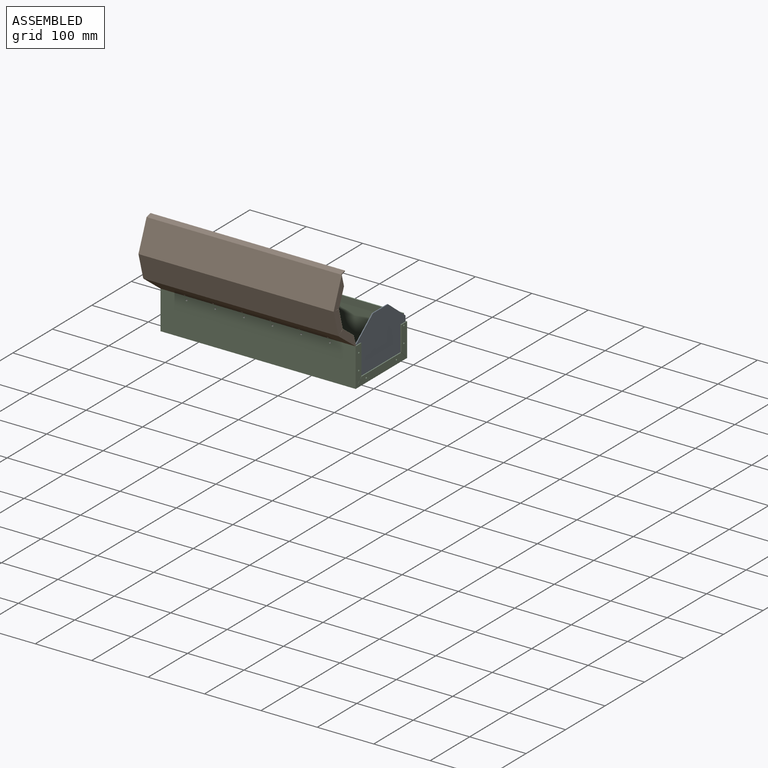
[diagram: assembled view]
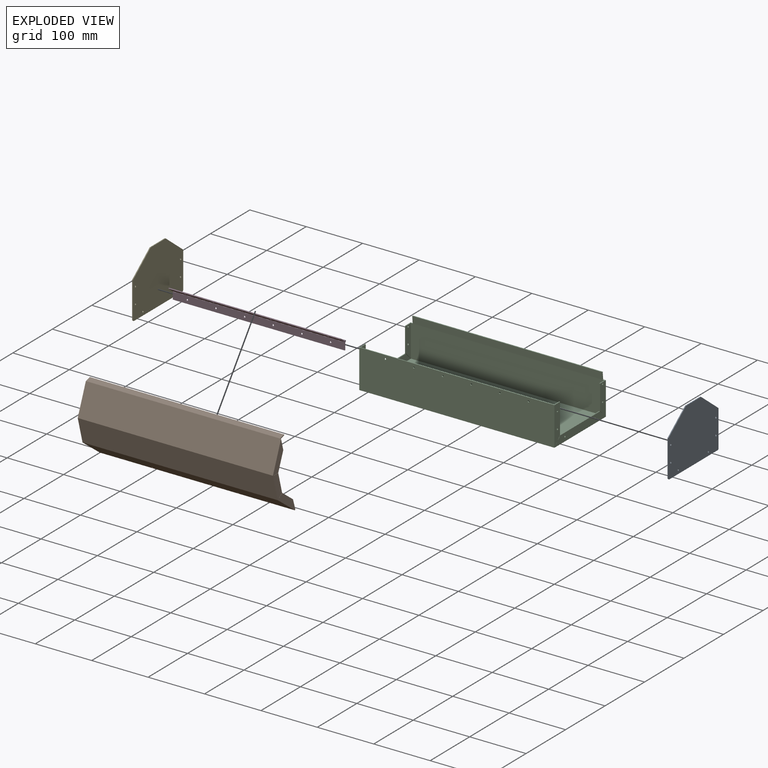
[diagram: exploded view]
GUIDED TOUR — MATED ASSEMBLY WITH SUBASSEMBLIES (Onshape document 583db250d88ef31051926281, AutoMate assembly 583db250d88ef31051926281_d5bd9da4a9e3751a0005c01e_6bdeaee52daf93c779b3a2b1_default)

This assembly has 7 component occurrences arranged in 5 top-level units: 4 individual components plus 1 subassembly (S0). The tour has two levels: first the top level, where each subassembly is treated as one rigid unit; then each subassembly is toured internally in its own section (nesting deeper than one subassembly level is flattened into its subassembly's section).

Components are labeled P0..P6 across the whole record; subassembly units are labeled S0..S0. A mate is a constraint between two units; its type names the relative motion it leaves free:
  CYLINDRICAL — leaves both rotation about and translation along the listed axis free,
  PLANAR — leaves sliding in the plane through the listed point (normal = the listed direction) and rotation about that normal free.
Axis/direction vectors are unit vectors and 'through' points are millimeter coordinates, both in the assembly's world frame.

TOP-LEVEL MATES (between units; each subassembly's internal mates are listed in its own section)
  1. CYLINDRICAL "Cylindrical 6": S0 <-> P2, axis (0.000, -1.000, 0.000) through (207.93, 35.70, 81.81) mm
  2. CYLINDRICAL "Cylindrical 3": P0 <-> P2, axis (-1.000, 0.000, 0.000) through (250.79, 137.30, 27.87) mm
  3. CYLINDRICAL "Cylindrical 2": P5 <-> P2, axis (-1.000, 0.000, 0.000) through (-90.52, 156.35, 46.92) mm
  4. PLANAR "Planar 3": S0 <-> P2, direction (0.000, -1.000, 0.000) through (-20.67, 35.70, 88.16) mm
  5. PLANAR "Planar 1": P5 <-> P2, direction (-1.000, 0.000, 0.000) through (-90.52, 99.20, 67.04) mm
  6. CYLINDRICAL "Cylindrical 7": P1 <-> S0, axis (0.000, -0.602, -0.799) through (-46.07, 29.04, 91.99) mm
  7. CYLINDRICAL "Cylindrical 4": P0 <-> P2, axis (-1.000, 0.000, 0.000) through (250.79, 61.10, 27.87) mm
  8. CYLINDRICAL "Cylindrical 1": P5 <-> P2, axis (-1.000, 0.000, 0.000) through (-90.52, 61.10, 27.87) mm
  9. PLANAR "Planar 2": P0 <-> P2, direction (1.000, 0.000, 0.000) through (252.38, 99.20, 67.04) mm
  10. CYLINDRICAL "Cylindrical 8": P1 <-> S0, axis (0.000, 0.602, 0.799) through (207.93, 30.00, 93.26) mm
  11. PLANAR "Planar 4": P1 <-> S0, direction (0.000, 0.602, 0.799) through (80.93, 13.47, 105.71) mm
  12. CYLINDRICAL "Cylindrical 5": S0 <-> P2, axis (0.000, -1.000, 0.000) through (-46.07, 35.70, 81.81) mm

TOP-LEVEL ASSEMBLY ORDER
  1. S0 — the base component [order verified]
  2. P2 [order verified]
  3. P1 [order verified]
  4. P0 [order verified]
  5. P5 [order verified]
Order-tag legend:
  [order verified] — this step's position reverses a verified removal order: the component was checked to insert without passing through the ones already placed.

Of the 7 component occurrences, 1 carries the full construction recipe — the FeatureScript program that regenerates the part's solid from scratch; the rest are supplied as boundary geometry only. Each toured unit is shown spotlighted twice — assembled, then exploded with a leader line back to its socket (green = recipe-attached component, orange = geometry-only, blue = subassembly unit; the rest desaturated gray).
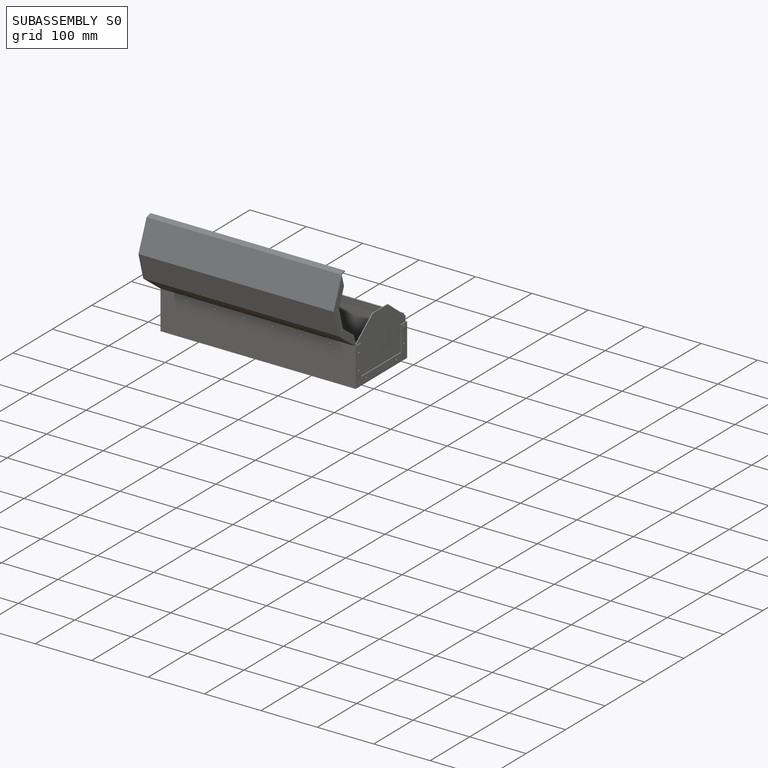
[diagram: subassembly S0 — assembled]
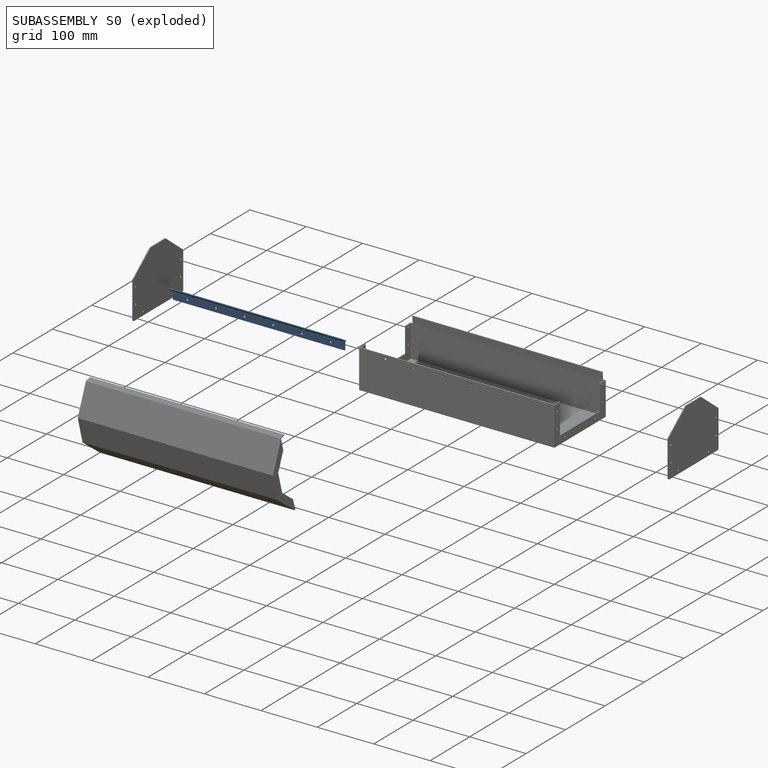
[diagram: subassembly S0 — exploded]
SUBASSEMBLY S0 — 3 components (P3, P4, P6), of which 0 recipe-attached; toured below.
Held by: CYLINDRICAL mate "Cylindrical 6" to P2; PLANAR mate "Planar 3" to P2; CYLINDRICAL mate "Cylindrical 7" to P1; CYLINDRICAL mate "Cylindrical 8" to P1; PLANAR mate "Planar 4" to P1; CYLINDRICAL mate "Cylindrical 5" to P2.
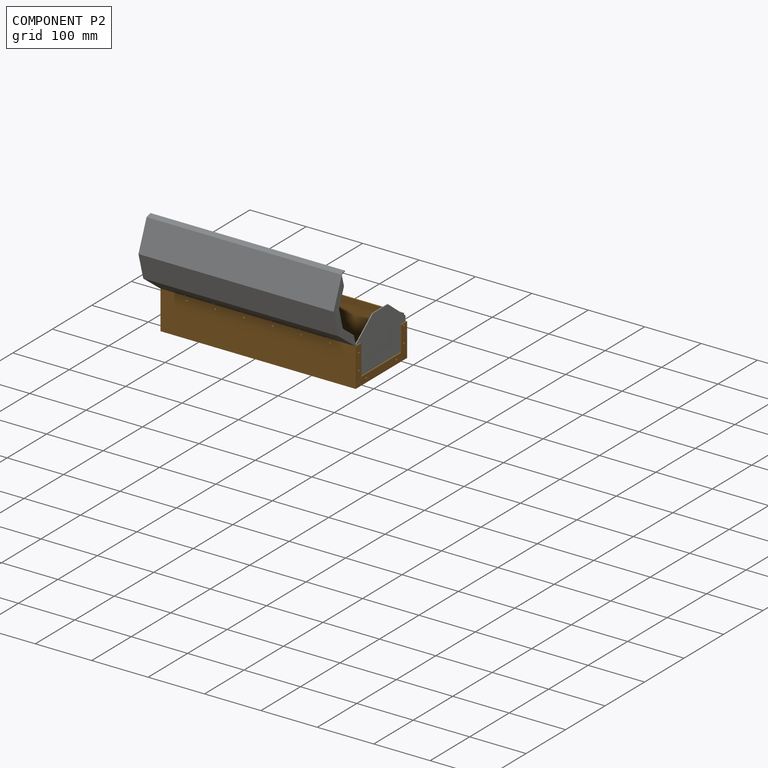
[diagram: component P2 — assembled]
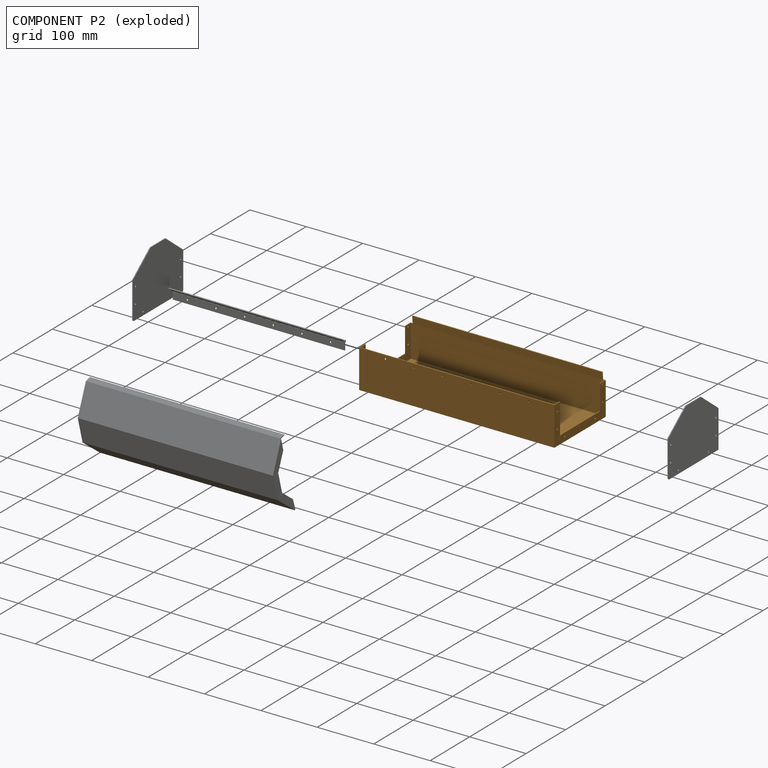
[diagram: component P2 — exploded]
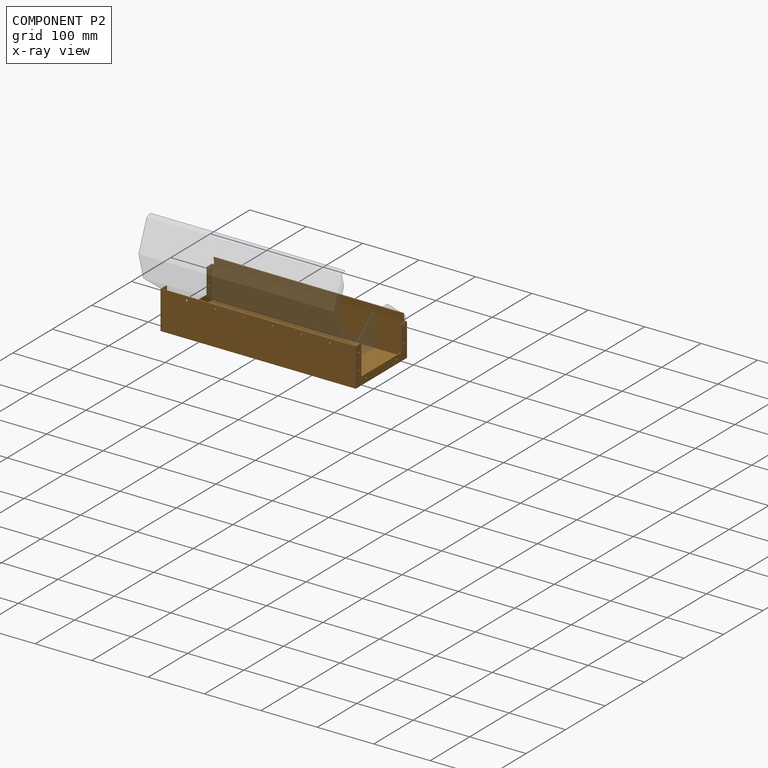
[diagram: component P2 — x-ray view]
COMPONENT P2 — geometry summary (no construction recipe available for this part):
  bounding box: 346.1 x 130.2 x 71.4 mm
  B-rep topology: 1 solid, 56 faces, 328 edges
  volume: 155118 mm^3 (5% of its bounding box)
  symmetry: mirror-symmetric across its x mid-plane
Held by: CYLINDRICAL mate "Cylindrical 6" to P3; CYLINDRICAL mate "Cylindrical 3" to P0; CYLINDRICAL mate "Cylindrical 2" to P5; PLANAR mate "Planar 3" to P3; PLANAR mate "Planar 1" to P5; CYLINDRICAL mate "Cylindrical 4" to P0; CYLINDRICAL mate "Cylindrical 1" to P5; PLANAR mate "Planar 2" to P0; CYLINDRICAL mate "Cylindrical 5" to P3.
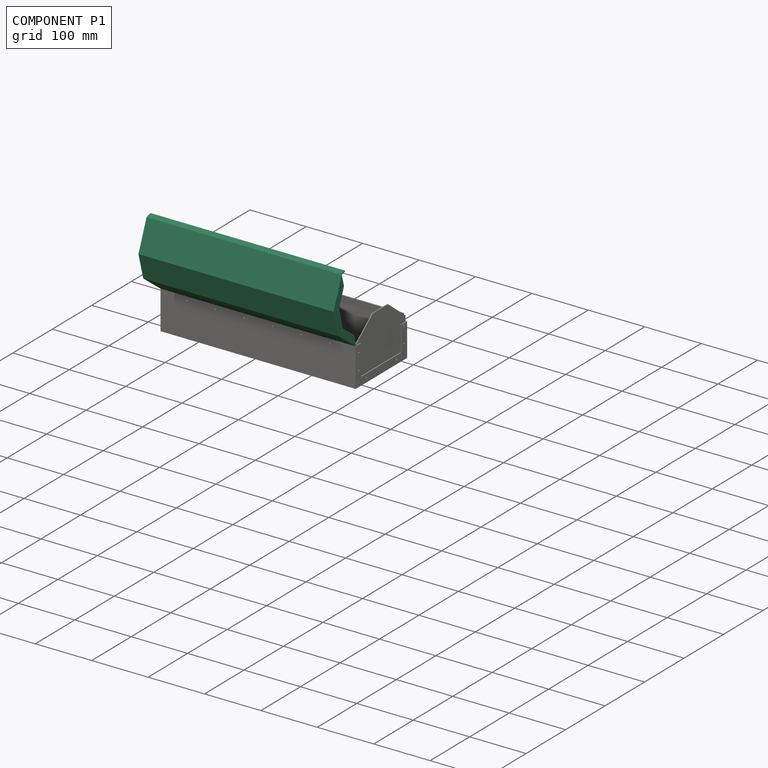
[diagram: component P1 — assembled]
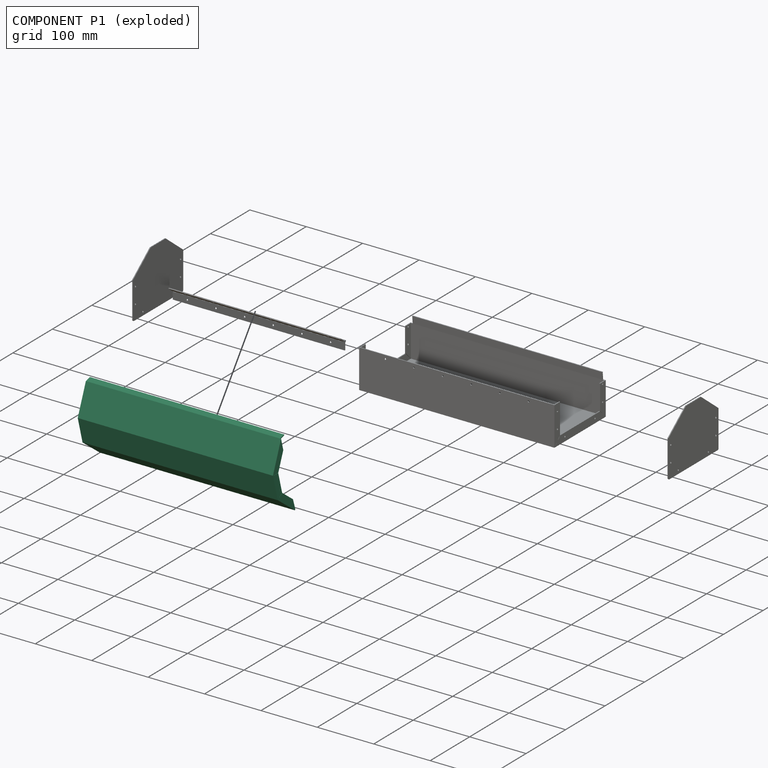
[diagram: component P1 — exploded]
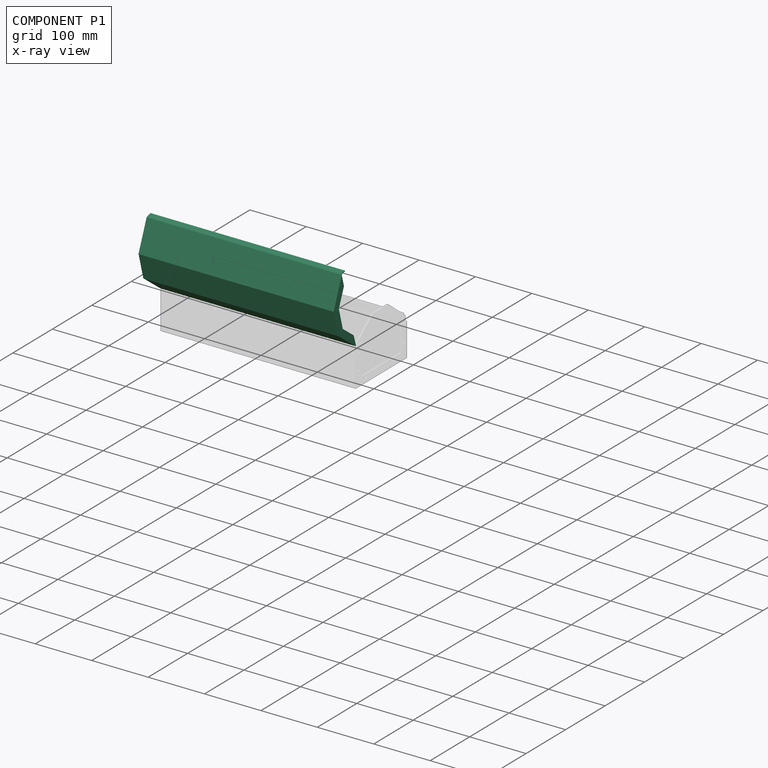
[diagram: component P1 — x-ray view]
COMPONENT P1 — recipe-attached (CADFS 00343173, mesh-verified: the recipe's output STEP matches this component's geometry to below the mesh-comparison resolution (tessellation chordal tolerance ~0.56 mm)).
Held by: CYLINDRICAL mate "Cylindrical 7" to P3; CYLINDRICAL mate "Cylindrical 8" to P3; PLANAR mate "Planar 4" to P3.
Construction recipe (FeatureScript — the CAD program that rebuilds this solid; sketch coordinates are in the units given by the * unit suffixes, e.g. mm):

FeatureScript 1549;
import(path : "onshape/std/geometry.fs", version : "1549.0");
import(path : "onshape/std/common.fs", version : "1549.0");
const mm = millimeter;
const VERTEX = EntityType.VERTEX;
const EDGE = EntityType.EDGE;
const FACE = EntityType.FACE;
const BODY = EntityType.BODY;
function v(x, y){return vector(x, y);}
function OD(order){return orderDisambiguation(order);}
function OSD(set){return originalSetDisambiguation(set);}
function TD(topology){return topologyDisambiguation(topology);}
function TDD(query){return trueDependencyDisambiguation(query);}
function sQuery(a, b, c) {return sketchEntityQuery(a, b, c);}

annotation { "Feature Type Name" : "Feature", "Feature Type Description" : "" }
export const myFeature = defineFeature(function(context is Context, id is Id, definition is map)
    precondition{}
    {
        {
            var Q0;
            Q0=qCreatedBy(makeId("Right.planeOp"),FACE);
            var sketch = newSketch(context, id + "F0", { "sketchPlane" : qUnion([Q0])});
            skLineSegment(sketch, "E0", {"start": v(0, 0) * mm, "end": v(130.18, 0) * mm, "construction": true});
            skLineSegment(sketch, "E1", {"start": v(0, 0) * mm, "end": v(42.86, 32.8) * mm});
            skLineSegment(sketch, "E2", {"start": v(42.86, 32.8) * mm, "end": v(87.31, 32.8) * mm});
            skLineSegment(sketch, "E3", {"start": v(87.31, 32.8) * mm, "end": v(130.18, 0) * mm});
            skLineSegment(sketch, "E4", {"start": v(130.18, 0) * mm, "end": v(130.18, -9.53) * mm});
            skLineSegment(sketch, "E5", {"start": v(130.18, -9.53) * mm, "end": v(131.76, -9.53) * mm});
            skLineSegment(sketch, "E6.0", {"start": v(0, 1.59) * mm, "end": v(130.18, 1.59) * mm, "construction": true});
            skLineSegment(sketch, "E7", {"start": v(131.76, -9.53) * mm, "end": v(131.76, 0.78) * mm});
            skLineSegment(sketch, "E8.0", {"start": v(42.32, 34.4) * mm, "end": v(87.85, 34.4) * mm});
            skLineSegment(sketch, "E9.0", {"start": v(-0.96, 1.26) * mm, "end": v(42.32, 34.4) * mm});
            skLineSegment(sketch, "E10.0", {"start": v(87.85, 34.4) * mm, "end": v(131.76, 0.78) * mm});
            skLineSegment(sketch, "E11", {"start": v(-0.96, 1.26) * mm, "end": v(0, 0) * mm});
            skSolve(sketch);
        }
        {
            var Q0;
            Q0=makeQuery(id+"F0.imprint","IMPRINT",FACE,{"disambiguationData":[TD([[makeQuery(id+"F0.imprint","IMPRINT",EDGE,{"derivedFrom":sQuery(id+"F0.wireOp",EDGE,"E1")}),1.0]])]});
            extrude(context, id + "F1", {"entities" : qUnion([Q0]), "depth" : 342.9 * mm});
        }
        {
            var Q0;
            Q0=makeQuery(id+"F1.opExtrude","CAP_FACE",FACE,{"disambiguationData":[OSD([sQuery(id+"F0.wireOp",EDGE,"E1"),sQuery(id+"F0.wireOp",EDGE,"E2"),sQuery(id+"F0.wireOp",EDGE,"E3"),sQuery(id+"F0.wireOp",EDGE,"E4"),sQuery(id+"F0.wireOp",EDGE,"E5"),sQuery(id+"F0.wireOp",EDGE,"E7"),sQuery(id+"F0.wireOp",EDGE,"E8.0"),sQuery(id+"F0.wireOp",EDGE,"E9.0"),sQuery(id+"F0.wireOp",EDGE,"E10.0"),sQuery(id+"F0.wireOp",EDGE,"E11")])],"isStart":false});
            var sketch = newSketch(context, id + "F2", { "sketchPlane" : qUnion([Q0])});
            skLineSegment(sketch, "E12.0", {"start": v(19.36, 0.82) * mm, "end": v(46.42, 21.54) * mm});
            skLineSegment(sketch, "E13.0", {"start": v(46.88, 21.7) * mm, "end": v(83.3, 21.7) * mm});
            skLineSegment(sketch, "E14.0", {"start": v(83.75, 21.54) * mm, "end": v(110.81, 0.82) * mm});
            skLineSegment(sketch, "E15", {"start": v(19.36, 0.82) * mm, "end": v(0, 0) * mm});
            skLineSegment(sketch, "E16", {"start": v(46.88, 21.7) * mm, "end": v(42.86, 32.8) * mm});
            skLineSegment(sketch, "E17", {"start": v(42.86, 32.8) * mm, "end": v(46.42, 21.54) * mm});
            skLineSegment(sketch, "E18", {"start": v(83.3, 21.7) * mm, "end": v(87.31, 32.8) * mm});
            skLineSegment(sketch, "E19", {"start": v(87.31, 32.8) * mm, "end": v(83.75, 21.54) * mm});
            skLineSegment(sketch, "E20", {"start": v(130.18, 0) * mm, "end": v(123.42, -8.82) * mm, "construction": true});
            skLineSegment(sketch, "E21", {"start": v(110.81, 0.82) * mm, "end": v(130.18, 0) * mm});
            skSolve(sketch);
        }
        {
            var Q0;
            Q0=makeQuery(id+"F2.imprint","IMPRINT",FACE,{"disambiguationData":[TD([[makeQuery(id+"F2.imprint","IMPRINT",EDGE,{"derivedFrom":sQuery(id+"F2.wireOp",EDGE,"E12.0")}),1.0]])]});
            var Q1;
            Q1=makeQuery(id+"F2.imprint","IMPRINT",FACE,{"disambiguationData":[TD([[makeQuery(id+"F2.imprint","IMPRINT",EDGE,{"derivedFrom":sQuery(id+"F2.wireOp",EDGE,"E13.0")}),1.0]])]});
            var Q2;
            Q2=makeQuery(id+"F2.imprint","IMPRINT",FACE,{"disambiguationData":[TD([[makeQuery(id+"F2.imprint","IMPRINT",EDGE,{"derivedFrom":sQuery(id+"F2.wireOp",EDGE,"E14.0")}),1.0]])]});
            var Q3;
            Q3=makeQuery(id+"F2.imprint","IMPRINT",FACE,{"disambiguationData":[TD([[makeQuery(id+"F2.imprint","IMPRINT",EDGE,{"derivedFrom":makeQuery(id+"F1.opExtrude","CAP_EDGE",EDGE,{"disambiguationData":[OSD([sQuery(id+"F0.wireOp",EDGE,"E1")])],"isStart":false})}),1.0]])]});
            extrude(context, id + "F3", {"entities" : qUnion([Q0, Q1, Q2, Q3]), "depth" : 1.59 * mm});
        }
        {
            var Q0;
            Q0=makeQuery(id+"F3.opExtrude","SWEPT_FACE",FACE,{"disambiguationData":[OSD([sQuery(id+"F0.wireOp",EDGE,"E7")])]});
            var sketch = newSketch(context, id + "F4", { "sketchPlane" : qUnion([Q0])});
            skLineSegment(sketch, "E22.bottom", {"start": v(-344.49, 0.78) * mm, "end": v(-342.9, 0.78) * mm});
            skLineSegment(sketch, "E22.top", {"start": v(-344.49, -9.53) * mm, "end": v(-342.9, -9.53) * mm});
            skLineSegment(sketch, "E22.left", {"start": v(-344.49, 0.78) * mm, "end": v(-344.49, -9.53) * mm});
            skLineSegment(sketch, "E22.right", {"start": v(-342.9, 0.78) * mm, "end": v(-342.9, -9.53) * mm});
            skSolve(sketch);
        }
        {
            var Q0;
            Q0=makeQuery(id+"F4.imprint","IMPRINT",FACE,{"disambiguationData":[TD([[makeQuery(id+"F4.imprint","IMPRINT",EDGE,{"derivedFrom":sQuery(id+"F4.wireOp",EDGE,"E22.bottom")}),-1.0]])]});
            extrude(context, id + "F5", {"entities" : qUnion([Q0]), "operationType" : NewBodyOperationType.REMOVE, "oppositeDirection" : true, "depth" : 25.4 * mm});
        }
        {
            var Q0;
            Q0=makeQuery(id+"F1.opExtrude","CAP_FACE",FACE,{"disambiguationData":[OSD([sQuery(id+"F0.wireOp",EDGE,"E1"),sQuery(id+"F0.wireOp",EDGE,"E2"),sQuery(id+"F0.wireOp",EDGE,"E3"),sQuery(id+"F0.wireOp",EDGE,"E4"),sQuery(id+"F0.wireOp",EDGE,"E5"),sQuery(id+"F0.wireOp",EDGE,"E7"),sQuery(id+"F0.wireOp",EDGE,"E8.0"),sQuery(id+"F0.wireOp",EDGE,"E9.0"),sQuery(id+"F0.wireOp",EDGE,"E10.0"),sQuery(id+"F0.wireOp",EDGE,"E11")])],"isStart":true});
            var sketch = newSketch(context, id + "F6", { "sketchPlane" : qUnion([Q0])});
            skLineSegment(sketch, "E23.0", {"start": v(-110.81, 0.82) * mm, "end": v(-83.75, 21.54) * mm});
            skLineSegment(sketch, "E24.0", {"start": v(-83.3, 21.7) * mm, "end": v(-46.88, 21.7) * mm});
            skLineSegment(sketch, "E25.0", {"start": v(-46.42, 21.54) * mm, "end": v(-19.36, 0.82) * mm});
            skLineSegment(sketch, "E26", {"start": v(-110.81, 0.82) * mm, "end": v(-130.18, 0) * mm});
            skLineSegment(sketch, "E27", {"start": v(-83.3, 21.7) * mm, "end": v(-87.31, 32.8) * mm});
            skLineSegment(sketch, "E28", {"start": v(-87.31, 32.8) * mm, "end": v(-83.75, 21.54) * mm});
            skLineSegment(sketch, "E29", {"start": v(-46.88, 21.7) * mm, "end": v(-42.86, 32.8) * mm});
            skLineSegment(sketch, "E30", {"start": v(-42.86, 32.8) * mm, "end": v(-46.42, 21.54) * mm});
            skLineSegment(sketch, "E31", {"start": v(0, 0) * mm, "end": v(-6.75, -8.82) * mm, "construction": true});
            skLineSegment(sketch, "E32", {"start": v(-19.36, 0.82) * mm, "end": v(0, 0) * mm});
            skSolve(sketch);
        }
        {
            var Q0;
            Q0=makeQuery(id+"F6.imprint","IMPRINT",FACE,{"disambiguationData":[TD([[makeQuery(id+"F6.imprint","IMPRINT",EDGE,{"derivedFrom":sQuery(id+"F6.wireOp",EDGE,"E23.0")}),1.0]])]});
            var Q1;
            Q1=makeQuery(id+"F6.imprint","IMPRINT",FACE,{"disambiguationData":[TD([[makeQuery(id+"F6.imprint","IMPRINT",EDGE,{"derivedFrom":sQuery(id+"F6.wireOp",EDGE,"E24.0")}),1.0]])]});
            var Q2;
            Q2=makeQuery(id+"F6.imprint","IMPRINT",FACE,{"disambiguationData":[TD([[makeQuery(id+"F6.imprint","IMPRINT",EDGE,{"derivedFrom":sQuery(id+"F6.wireOp",EDGE,"E25.0")}),1.0]])]});
            var Q3;
            Q3=makeQuery(id+"F6.imprint","IMPRINT",FACE,{"disambiguationData":[TD([[makeQuery(id+"F6.imprint","IMPRINT",EDGE,{"derivedFrom":makeQuery(id+"F1.opExtrude","CAP_EDGE",EDGE,{"disambiguationData":[OSD([sQuery(id+"F0.wireOp",EDGE,"E1")])],"isStart":true})}),-1.0]])]});
            extrude(context, id + "F7", {"entities" : qUnion([Q0, Q1, Q2, Q3]), "operationType" : NewBodyOperationType.ADD, "depth" : 1.59 * mm});
        }
        {
            var Q0;
            Q0=makeQuery(id+"F1.opExtrude","SWEPT_BODY",BODY,{"disambiguationData":[OSD([sQuery(id+"F0.wireOp",EDGE,"E1"),sQuery(id+"F0.wireOp",EDGE,"E2"),sQuery(id+"F0.wireOp",EDGE,"E3"),sQuery(id+"F0.wireOp",EDGE,"E4"),sQuery(id+"F0.wireOp",EDGE,"E5"),sQuery(id+"F0.wireOp",EDGE,"E7"),sQuery(id+"F0.wireOp",EDGE,"E8.0"),sQuery(id+"F0.wireOp",EDGE,"E9.0"),sQuery(id+"F0.wireOp",EDGE,"E10.0"),sQuery(id+"F0.wireOp",EDGE,"E11")])]});
            var Q1;
            Q1=makeQuery(id+"F3.opExtrude","SWEPT_BODY",BODY,{"disambiguationData":[OSD([sQuery(id+"F0.wireOp",EDGE,"E4"),sQuery(id+"F0.wireOp",EDGE,"E5"),sQuery(id+"F0.wireOp",EDGE,"E7"),sQuery(id+"F0.wireOp",EDGE,"E8.0"),sQuery(id+"F0.wireOp",EDGE,"E9.0"),sQuery(id+"F0.wireOp",EDGE,"E10.0"),sQuery(id+"F0.wireOp",EDGE,"E11"),sQuery(id+"F2.wireOp",EDGE,"E12.0"),sQuery(id+"F2.wireOp",EDGE,"E13.0"),sQuery(id+"F2.wireOp",EDGE,"E14.0"),sQuery(id+"F2.wireOp",EDGE,"E15"),sQuery(id+"F2.wireOp",EDGE,"E16"),sQuery(id+"F2.wireOp",EDGE,"E17"),sQuery(id+"F2.wireOp",EDGE,"E18"),sQuery(id+"F2.wireOp",EDGE,"E19"),sQuery(id+"F2.wireOp",EDGE,"E21")])]});
            booleanBodies(context, id + "F8", {"operationType" : BooleanOperationType.UNION, "tools" : qUnion([Q0, Q1])});
        }
        {
            var Q0;
            {var subQ0=sQuery(id+"F0.wireOp",EDGE,"E9.0");Q0=makeQuery(id+"F8.opBoolean","MERGE",FACE,{"derivedFrom":[makeQuery(id+"F3.opExtrude","SWEPT_FACE",FACE,{"disambiguationData":[OSD([subQ0])]}),makeQuery(id+"F7.boolean.opBoolean","MERGE",FACE,{"derivedFrom":[makeQuery(id+"F1.opExtrude","SWEPT_FACE",FACE,{"disambiguationData":[OSD([subQ0])]}),makeQuery(id+"F7.opExtrude","SWEPT_FACE",FACE,{"disambiguationData":[OSD([subQ0])]})]})]});}
            var sketch = newSketch(context, id + "F9", { "sketchPlane" : qUnion([Q0])});
            skLineSegment(sketch, "E33", {"start": v(-1.59, 0) * mm, "end": v(19.05, 0) * mm, "construction": true});
            skLineSegment(sketch, "E34", {"start": v(19.05, 0) * mm, "end": v(323.85, 0) * mm, "construction": true});
            skLineSegment(sketch, "E35", {"start": v(323.85, 0) * mm, "end": v(344.49, 0) * mm});
            skLineSegment(sketch, "E36", {"start": v(19.05, 0) * mm, "end": v(19.05, 12.7) * mm, "construction": true});
            skLineSegment(sketch, "E37", {"start": v(19.05, 0) * mm, "end": v(19.05, 23.46) * mm, "construction": true});
            skPoint(sketch, "E37.endSnap0", {"position": v(19.05, 6.35) * mm});
            skLineSegment(sketch, "E38.0", {"start": v(44.45, 0) * mm, "end": v(44.45, 23.46) * mm, "construction": true});
            skLineSegment(sketch, "E39.0", {"start": v(95.25, 0) * mm, "end": v(95.25, 23.46) * mm, "construction": true});
            skLineSegment(sketch, "E40.0", {"start": v(146.05, 0) * mm, "end": v(146.05, 23.46) * mm, "construction": true});
            skLineSegment(sketch, "E41.0", {"start": v(196.85, 0) * mm, "end": v(196.85, 23.46) * mm, "construction": true});
            skLineSegment(sketch, "E42.0", {"start": v(247.65, 0) * mm, "end": v(247.65, 23.46) * mm, "construction": true});
            skLineSegment(sketch, "E43.0", {"start": v(298.45, 0) * mm, "end": v(298.45, 23.46) * mm, "construction": true});
            skLineSegment(sketch, "E44", {"start": v(19.05, 0) * mm, "end": v(19.05, 6.35) * mm, "construction": true});
            skLineSegment(sketch, "E45", {"start": v(19.05, 6.35) * mm, "end": v(337.9, 6.35) * mm, "construction": true});
            skCircle(sketch, "E46", {"center": v(44.45, 6.35) * mm, "radius": 1.59 * mm});
            skCircle(sketch, "E47", {"center": v(95.25, 6.35) * mm, "radius": 1.59 * mm});
            skCircle(sketch, "E48", {"center": v(146.05, 6.35) * mm, "radius": 1.59 * mm});
            skCircle(sketch, "E49", {"center": v(196.85, 6.35) * mm, "radius": 1.59 * mm});
            skCircle(sketch, "E50", {"center": v(247.65, 6.35) * mm, "radius": 1.59 * mm});
            skCircle(sketch, "E51", {"center": v(298.45, 6.35) * mm, "radius": 1.59 * mm});
            skSolve(sketch);
        }
        {
            var Q0;
            Q0=qSketchRegion(id+"F9",true);
            extrude(context, id + "F10", {"entities" : qUnion([Q0]), "operationType" : NewBodyOperationType.REMOVE, "endBound" : BoundingType.UP_TO_NEXT, "oppositeDirection" : true, "depth" : 25.4 * mm});
        }
    });
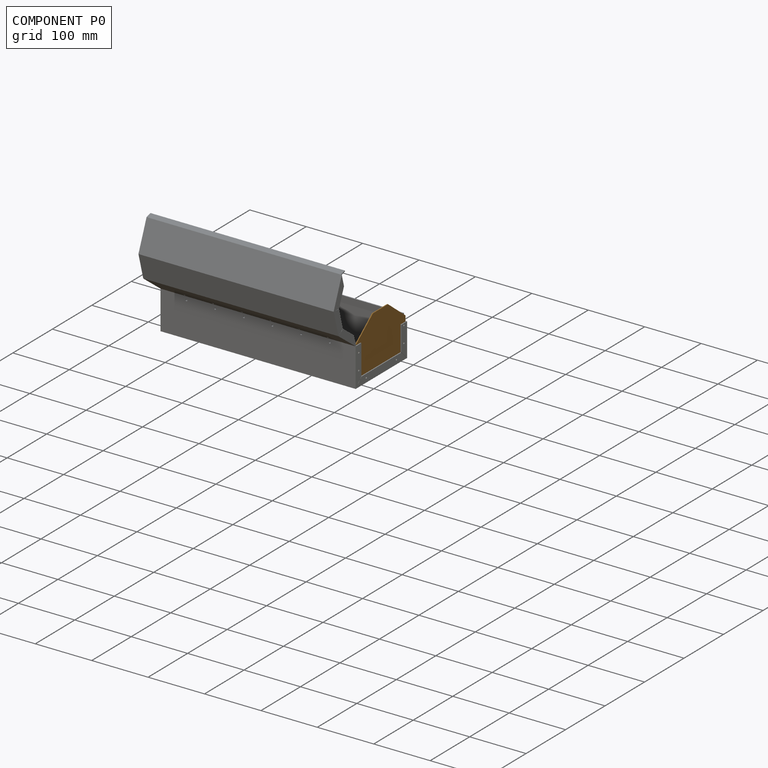
[diagram: component P0 — assembled]
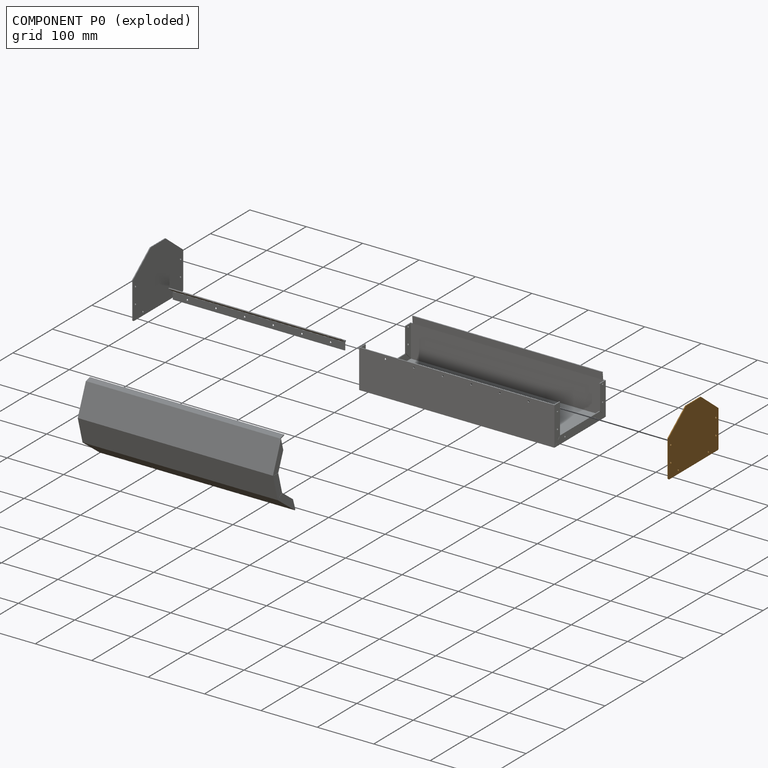
[diagram: component P0 — exploded]
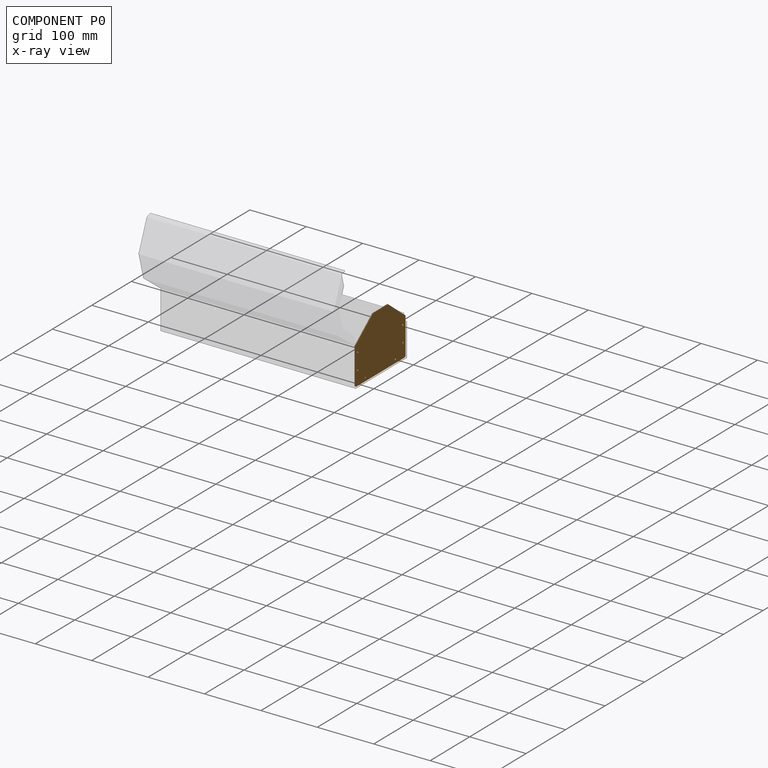
[diagram: component P0 — x-ray view]
COMPONENT P0 — geometry summary (no construction recipe available for this part):
  bounding box: 127.0 x 101.6 x 1.6 mm
  B-rep topology: 1 solid, 16 faces, 96 edges
  volume: 17940 mm^3 (88% of its bounding box)
  symmetry: 2-fold rotationally symmetric about the z axis; mirror-symmetric across its x mid-plane, y mid-plane
Held by: CYLINDRICAL mate "Cylindrical 3" to P2; CYLINDRICAL mate "Cylindrical 4" to P2; PLANAR mate "Planar 2" to P2.
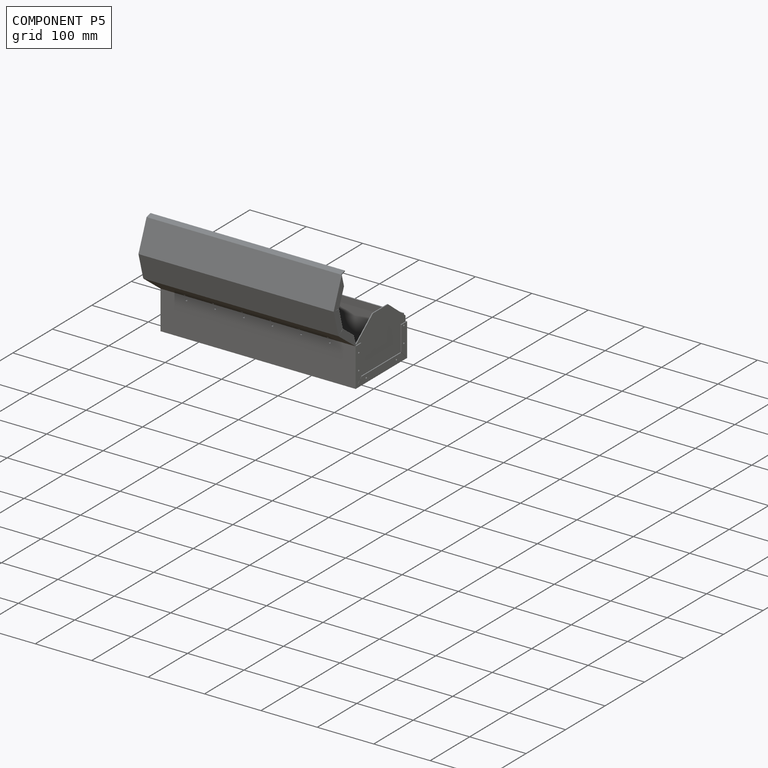
[diagram: component P5 — assembled]
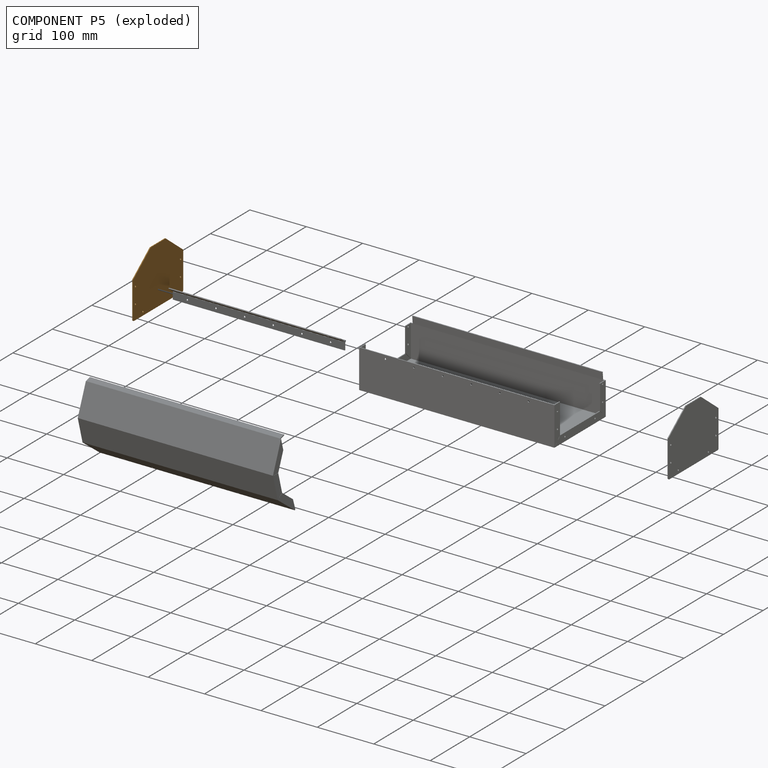
[diagram: component P5 — exploded]
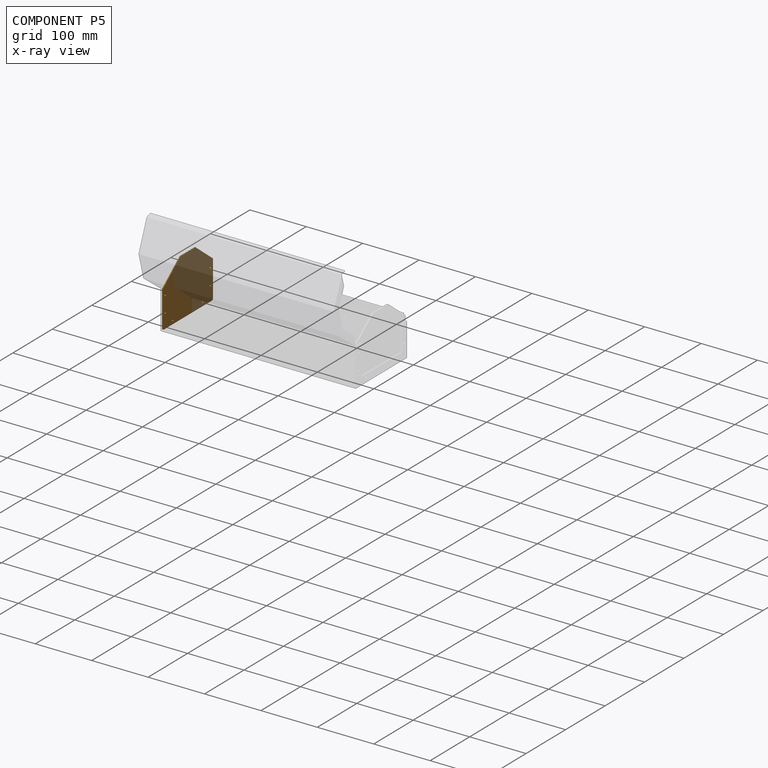
[diagram: component P5 — x-ray view]
COMPONENT P5 — geometry summary (no construction recipe available for this part):
  bounding box: 127.0 x 101.6 x 1.6 mm
  B-rep topology: 1 solid, 16 faces, 96 edges
  volume: 17940 mm^3 (88% of its bounding box)
  symmetry: 2-fold rotationally symmetric about the z axis; mirror-symmetric across its x mid-plane, y mid-plane
Held by: CYLINDRICAL mate "Cylindrical 2" to P2; PLANAR mate "Planar 1" to P2; CYLINDRICAL mate "Cylindrical 1" to P2.
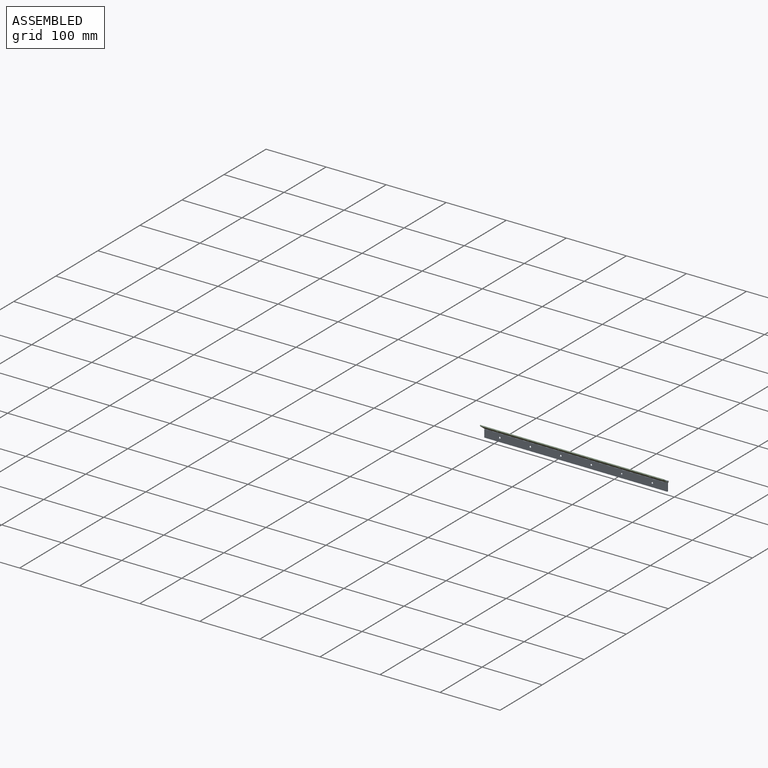
[diagram: subassembly S0 — assembled view]
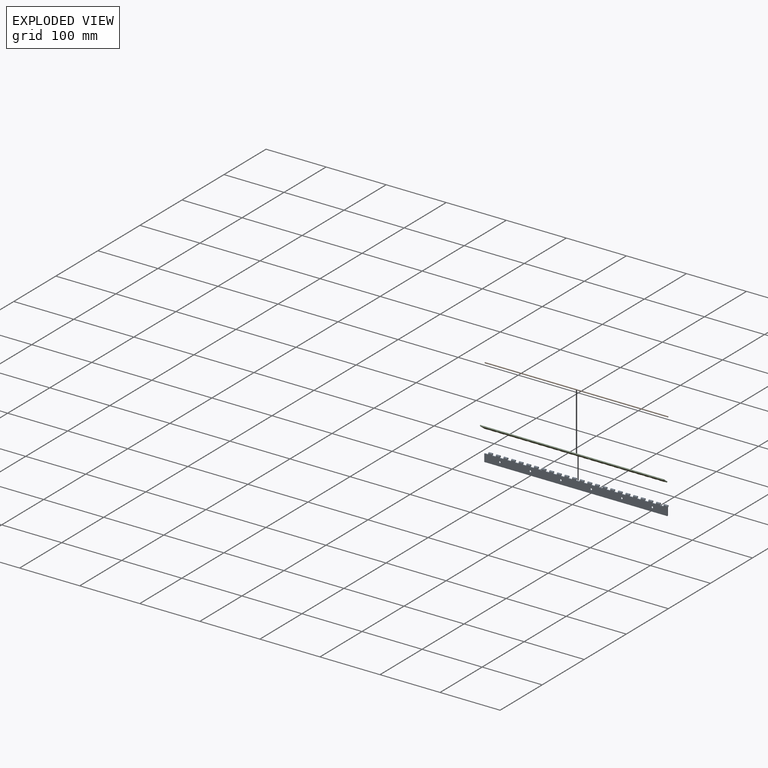
[diagram: subassembly S0 — exploded view]
SUBASSEMBLY S0 TOUR — 3 components, shown here in isolation at its own camera.

INTERNAL MATES
  1. CYLINDRICAL "Pin": P4 <-> P3, axis (1.000, 0.000, 0.000) through (233.33, 37.29, 89.75) mm
  2. CYLINDRICAL "Hinge Limits": P6 <-> P3, axis (-1.000, 0.000, 0.000) through (-71.47, 37.29, 89.75) mm
  3. PLANAR "Hinges": P6 <-> P3, direction (1.000, 0.000, 0.000) through (-65.12, 35.54, 90.07) mm
  4. PLANAR "Pin": P4 <-> P6, direction (-1.000, 0.000, 0.000) through (-71.47, 37.29, 89.75) mm
  5. PLANAR "Hinges": P6 <-> P3, direction (1.000, 0.000, 0.000) through (-65.12, 35.54, 90.07) mm
  6. PLANAR "Pin": P4 <-> P6, direction (-1.000, 0.000, 0.000) through (-71.47, 37.29, 89.75) mm
  7. CYLINDRICAL "Hinge Limits": P6 <-> P3, axis (-1.000, 0.000, 0.000) through (-71.47, 37.29, 89.75) mm
  8. CYLINDRICAL "Pin": P4 <-> P3, axis (1.000, 0.000, 0.000) through (233.33, 37.29, 89.75) mm

ASSEMBLY ORDER (within the subassembly)
  1. P6 — the base component [order verified]
  2. P3 [order verified]
  3. P4 [order verified]
(P3, P4 verified with a relaxed clearance tolerance: the source model stores slight part interference there.)
Order-tag legend:
  [order verified] — this step's position reverses a verified removal order: the component was checked to insert without passing through the ones already placed.
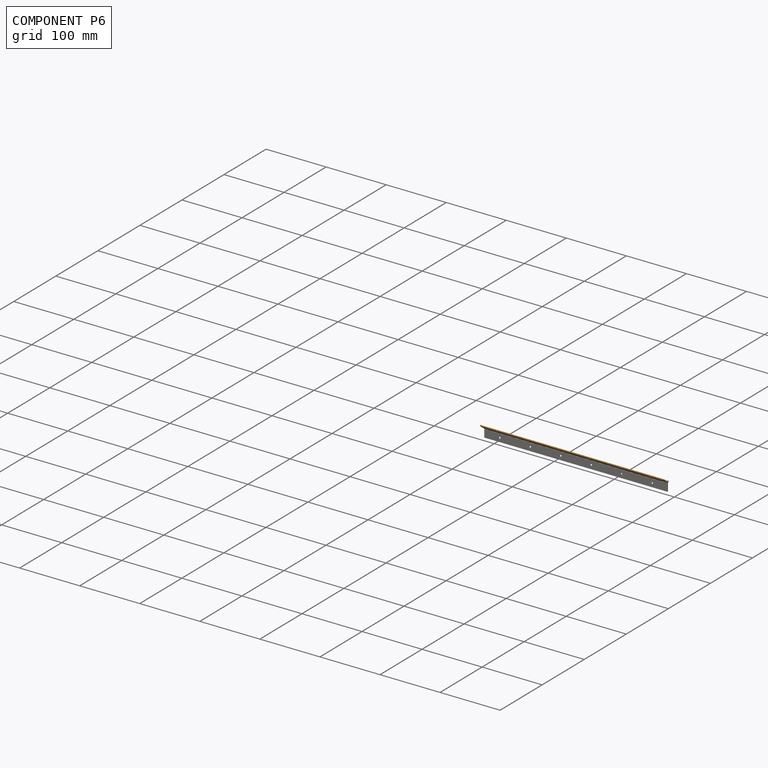
[diagram: component P6 — assembled]
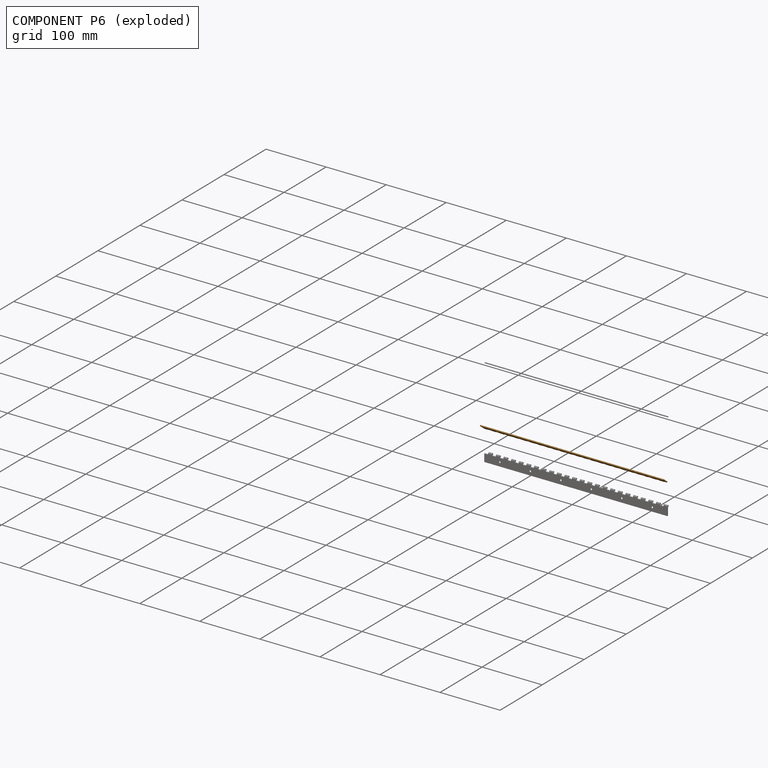
[diagram: component P6 — exploded]
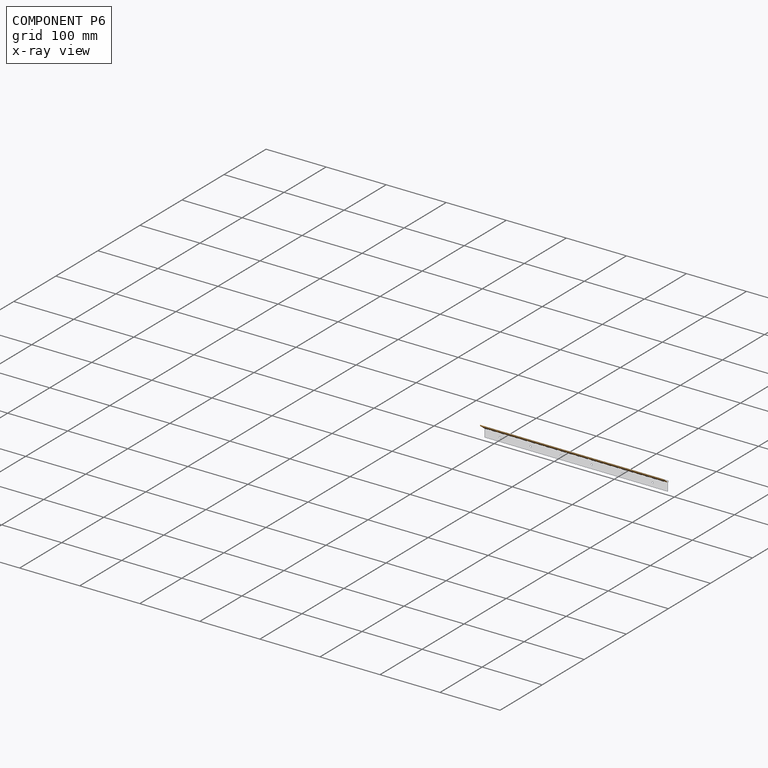
[diagram: component P6 — x-ray view]
COMPONENT P6 — geometry summary (no construction recipe available for this part):
  bounding box: 304.8 x 15.9 x 3.2 mm
  B-rep topology: 1 solid, 130 faces, 688 edges
  volume: 7057 mm^3 (46% of its bounding box)
Held by: CYLINDRICAL mate "Hinge Limits" to P3; PLANAR mate "Hinges" to P3; PLANAR mate "Pin" to P4; PLANAR mate "Hinges" to P3; PLANAR mate "Pin" to P4; CYLINDRICAL mate "Hinge Limits" to P3.
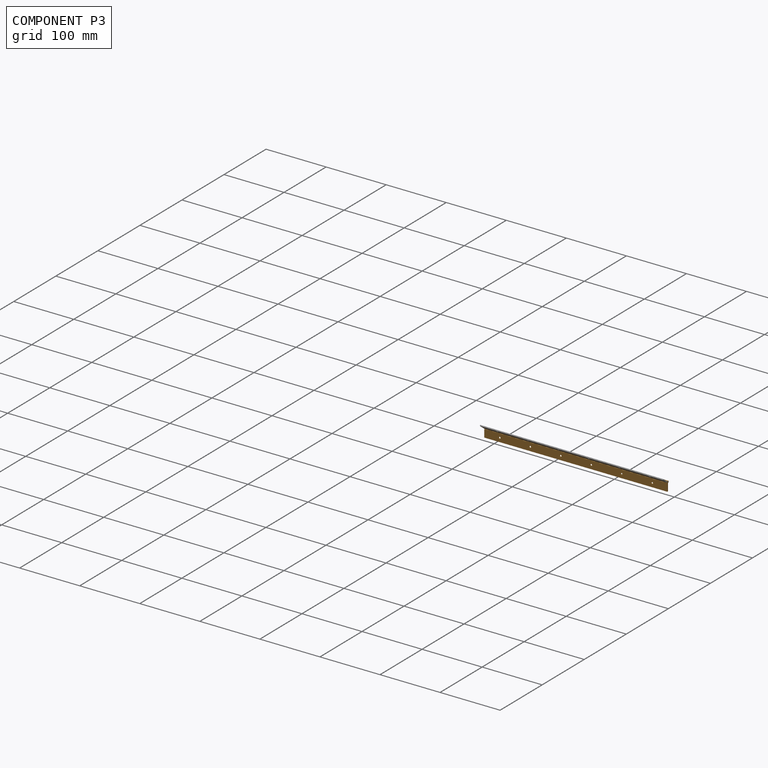
[diagram: component P3 — assembled]
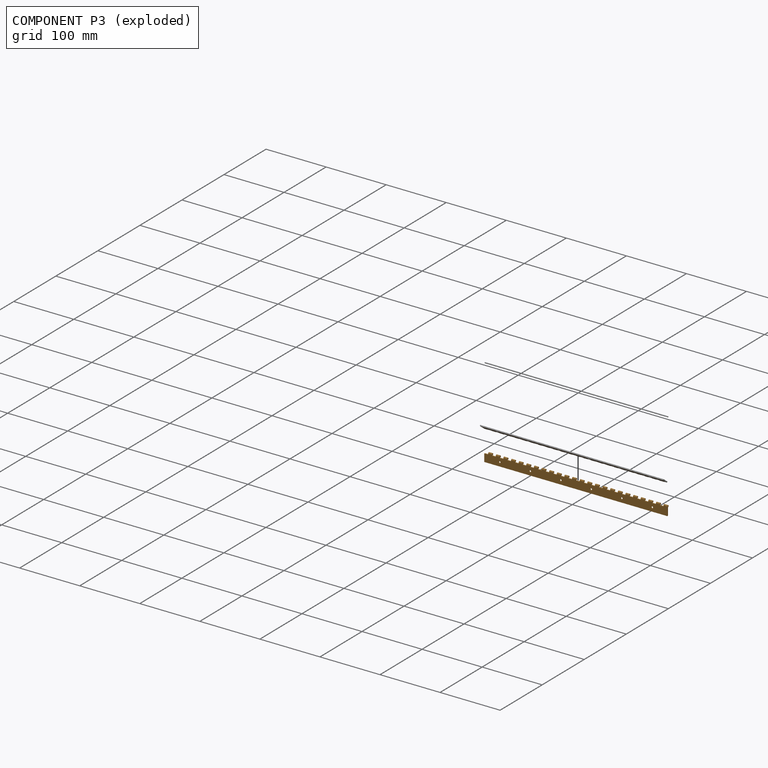
[diagram: component P3 — exploded]
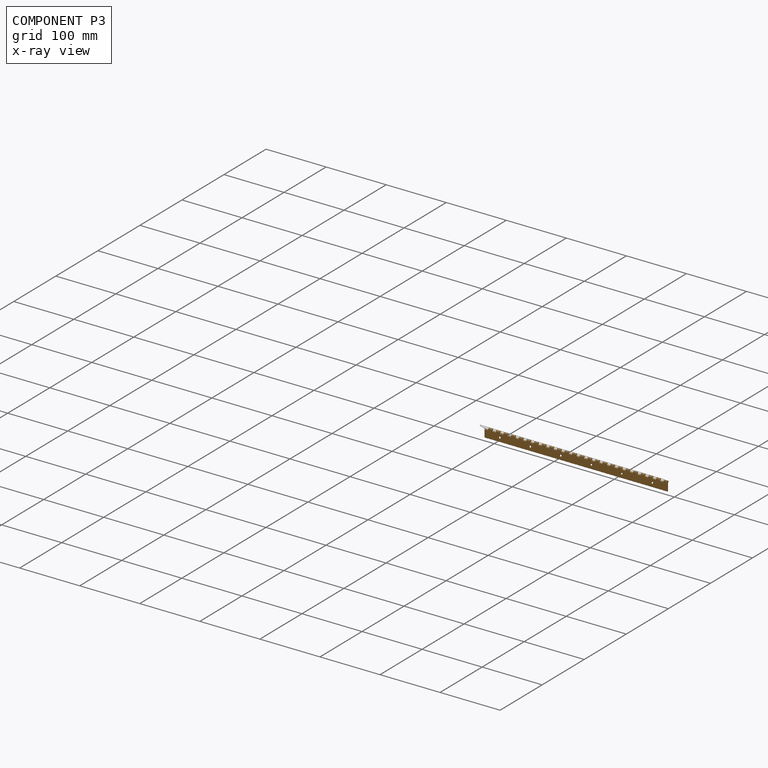
[diagram: component P3 — x-ray view]
COMPONENT P3 — geometry summary (no construction recipe available for this part):
  bounding box: 304.8 x 15.9 x 3.2 mm
  B-rep topology: 1 solid, 130 faces, 688 edges
  volume: 7057 mm^3 (46% of its bounding box)
Held by: CYLINDRICAL mate "Pin" to P4; CYLINDRICAL mate "Hinge Limits" to P6; PLANAR mate "Hinges" to P6; PLANAR mate "Hinges" to P6; CYLINDRICAL mate "Hinge Limits" to P6; CYLINDRICAL mate "Pin" to P4.
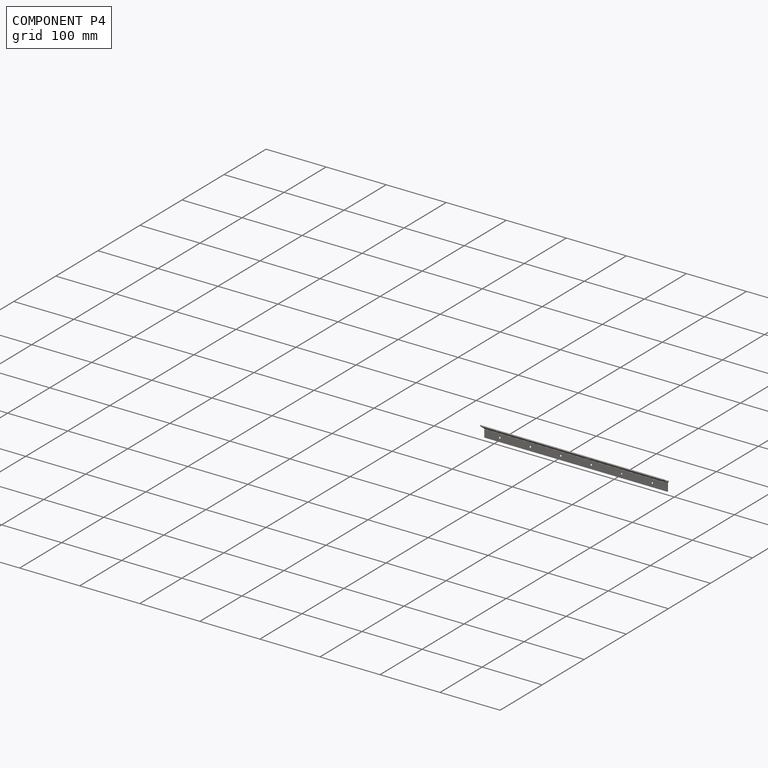
[diagram: component P4 — assembled]
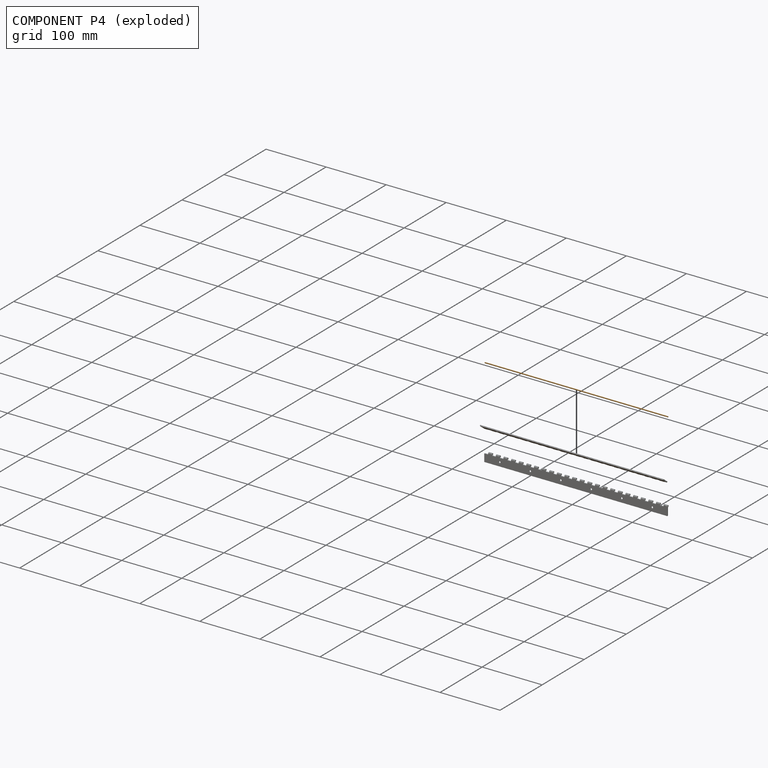
[diagram: component P4 — exploded]
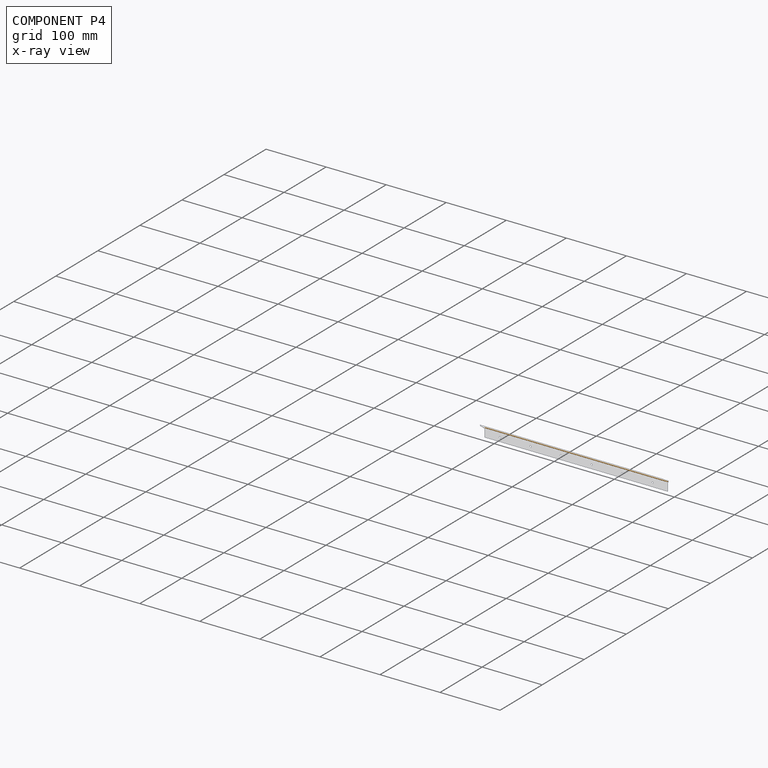
[diagram: component P4 — x-ray view]
COMPONENT P4 — geometry summary (no construction recipe available for this part):
  bounding box: 304.8 x 1.6 x 1.6 mm
  B-rep topology: 1 solid, 3 faces, 6 edges
  volume: 603 mm^3 (79% of its bounding box)
  symmetry: revolution-symmetric about the x axis through its bounding-box center; 2-fold rotationally symmetric about the y axis; 2-fold rotationally symmetric about the z axis; mirror-symmetric across its x mid-plane, y mid-plane, z mid-plane
Held by: CYLINDRICAL mate "Pin" to P3; PLANAR mate "Pin" to P6; PLANAR mate "Pin" to P6; CYLINDRICAL mate "Pin" to P3.
PROVENANCE & LICENSES
Assembly (occurrences, transforms, mates, per-part STEP geometry): AutoMate dataset, Zenodo record 7776208, CC0.
Construction recipes: CADFS (HuggingFace VladPyatov/CADFS, CC-BY-4.0, layered over the ABC dataset), FeatureScript reconstruction programs keyed by ABC model id.
Join: ABC meta listings map ABC model id -> Onshape documentId; within a shared document, parts are matched by geometric signature (bounding-box dims + volume at 0.1% relative tolerance, exact B-rep face/solid counts).
Verification: 1 of this assembly's 7 components carries a recipe attachment, and every attachment is mesh-verified: the CADFS STEP and the AutoMate member STEP were compared as meshes in their shared local frame (symmetric sampled-point-to-mesh distance); worst across the 1 attachment: below the mesh-comparison resolution (tessellation chordal tolerance ~0.56 mm) on a 373 mm part.
Renders: orthographic iso camera (az 35 / el 25); the floor grid conveys scale (grid pitch printed in each image; no ruler). In the exploded view each component is displaced by its stored offset vector: the offsets alone carry the explosion direction (mate normal/axis signs are not orientation cues and do not encode it), and separation distances are assigned per mate-chain, not proportionally to assembly-order depth.
